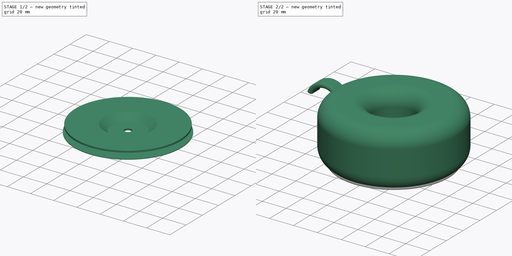
[diagram: build sequence overview — one tinted view per stage of 2, left to right]
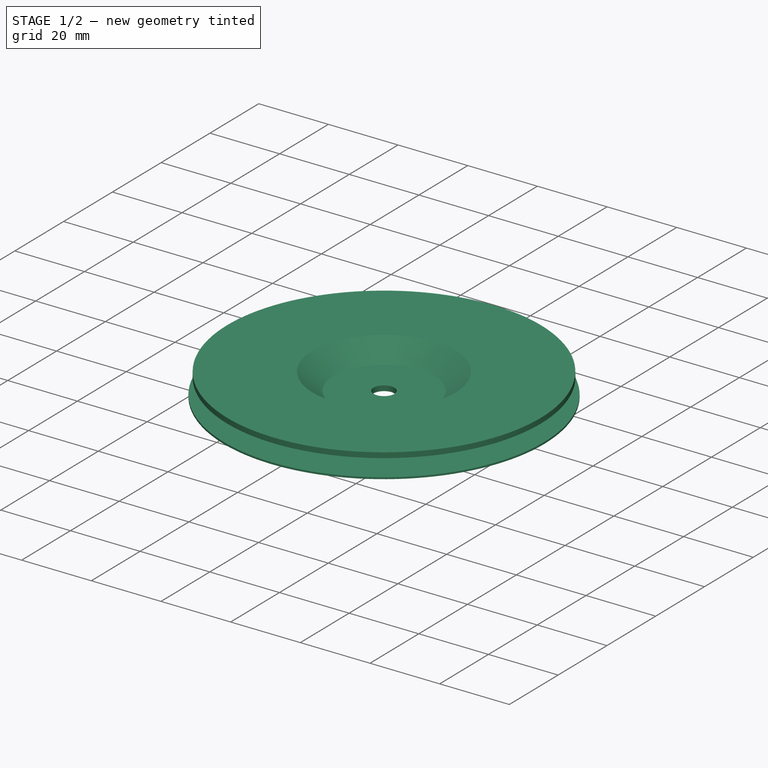
[diagram: stage 1 of 2 — iso view after this stage's code; geometry added in this stage tinted green]
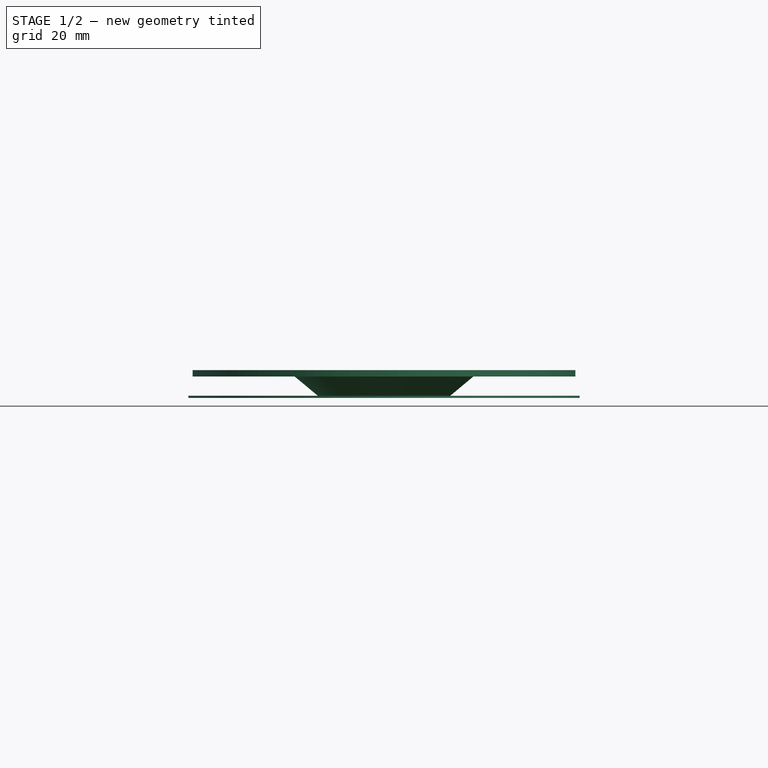
[diagram: stage 1 of 2 — front view after this stage's code; geometry added in this stage tinted green]
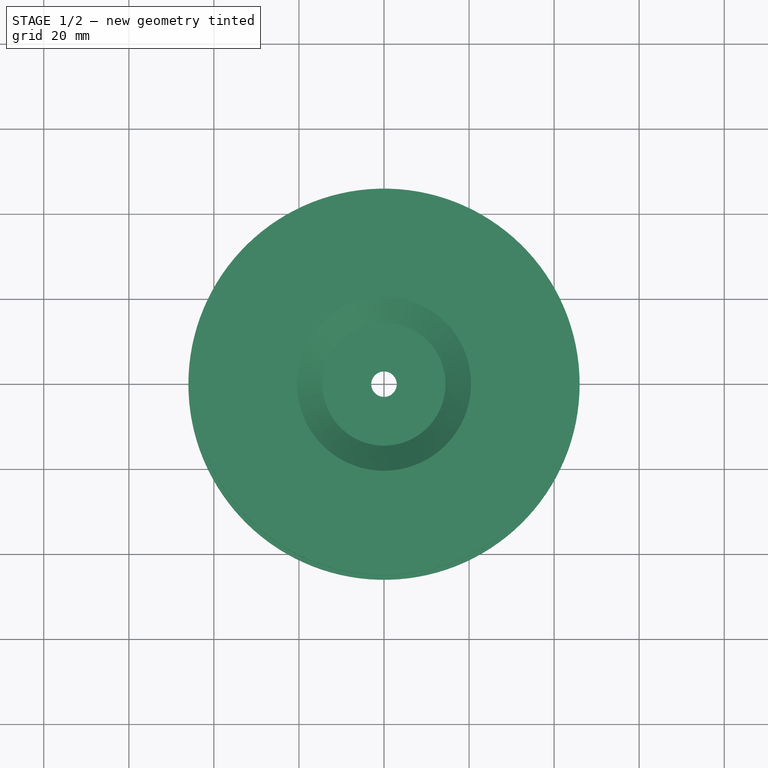
[diagram: stage 1 of 2 — top view after this stage's code; geometry added in this stage tinted green]
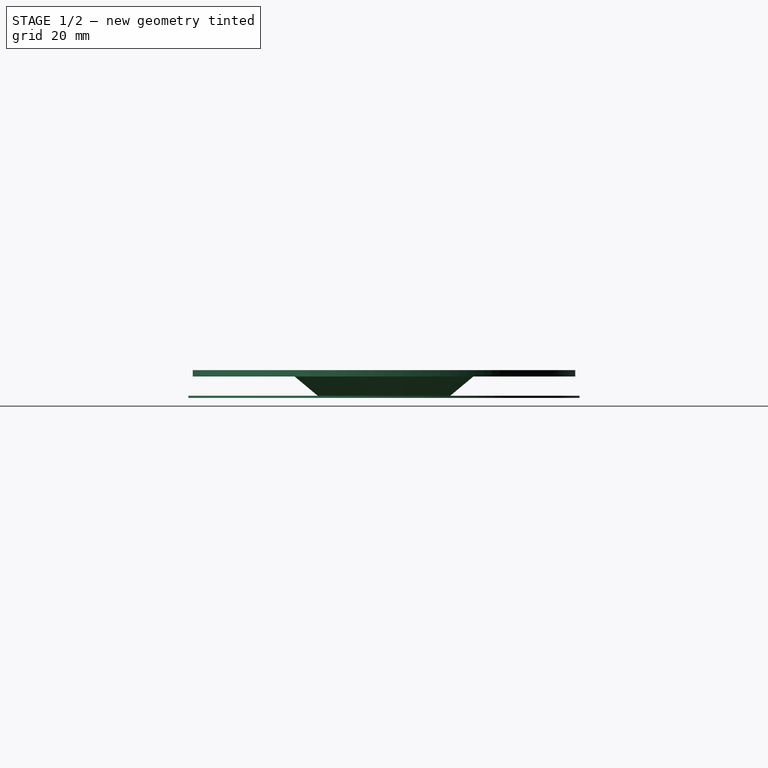
[diagram: stage 1 of 2 — right view after this stage's code; geometry added in this stage tinted green]
FCSTD DOCUMENT  (FreeCAD 0.20R28730 (Git))
Label: Transformer
License: All rights reserved
LicenseURL: http://en.wikipedia.org/wiki/All_rights_reserved
objects: PartDesign::CoordinateSystem×7, Sketcher::SketchObject×5, PartDesign::Revolution×3, PartDesign::Body×3, PartDesign::AdditivePipe×1
note: 23 computed .brp shape members not serialized (recipe doc carries the construction recipe); baked Part::Feature solids carry a one-line shape summary decoded from their .brp

FEATURE [Sketcher::SketchObject] Sketch003
  FullyConstrained = true
  MapMode = 5
  Placement = pos=(0,0,0) rot=(1,0,0;1.5708rad)
  Support = -> [XZ_Plane001]
  sketch-geometry (4):
    g0: LineSegment StartX=24 StartY=0 StartZ=0 EndX=46 EndY=0 EndZ=0
    g1: LineSegment StartX=46 StartY=0 StartZ=0 EndX=46 EndY=0.5 EndZ=0
    g2: LineSegment StartX=46 StartY=0.5 StartZ=0 EndX=24 EndY=0.5 EndZ=0
    g3: LineSegment StartX=24 StartY=0.5 StartZ=0 EndX=24 EndY=0 EndZ=0
  constraints (12):
    c: Coincident(g0,g1)
    c: Coincident(g1,g2)
    c: Coincident(g2,g3)
    c: Coincident(g3,g0)
    c: Horizontal(g0)
    c: Horizontal(g2)
    c: Vertical(g1)
    c: Vertical(g3)
    c: PointOnObject(g0,g-1)
    c: DistanceY(g3,g3) = 0.5
    c: DistanceX(g-1,g0) = 24
    c: DistanceX(g2,g2) = 22
FEATURE [PartDesign::Revolution] Revolution001
  Angle = 360
  Axis = (0,2e-16,1)
  Base = (0,0,0)
  Placement = pos=(0,0,0) rot=(1,0,0;1.5708rad)
  Profile = -> Sketch003
  ReferenceAxis = -> Sketch003 [V_Axis]
  Refine = true
  Reversed = true
FEATURE [Sketcher::SketchObject] Sketch004
  FullyConstrained = true
  MapMode = 5
  Placement = pos=(0,0,0) rot=(1,0,0;1.5708rad)
  Support = -> [XZ_Plane002]
  sketch-geometry (8):
    g0: LineSegment StartX=45 StartY=6.5 StartZ=0 EndX=20.4569 EndY=6.5 EndZ=0
    g1: LineSegment StartX=20.4569 StartY=6.5 StartZ=0 EndX=14.4569 EndY=1.5 EndZ=0
    g2: LineSegment StartX=14.4569 StartY=1.5 StartZ=0 EndX=3 EndY=1.5 EndZ=0
    g3: LineSegment StartX=3 StartY=1.5 StartZ=0 EndX=3 EndY=0 EndZ=0
    g4: LineSegment StartX=3 StartY=0 StartZ=0 EndX=15 EndY=0 EndZ=0
    g5: LineSegment StartX=15 StartY=0 StartZ=0 EndX=21 EndY=5 EndZ=0
    g6: LineSegment StartX=21 StartY=5 StartZ=0 EndX=45 EndY=5 EndZ=0
    g7: LineSegment StartX=45 StartY=5 StartZ=0 EndX=45 EndY=6.5 EndZ=0
  constraints (24):
    c: Horizontal(g0)
    c: Coincident(g0,g1)
    c: Coincident(g1,g2)
    c: Horizontal(g2)
    c: Coincident(g2,g3)
    c: Vertical(g3)
    c: Coincident(g3,g4)
    c: Horizontal(g4)
    c: Coincident(g4,g5)
    c: Coincident(g5,g6)
    c: Horizontal(g6)
    c: Coincident(g6,g7)
    c: Coincident(g7,g0)
    c: Vertical(g7)
    c: Parallel(g5,g1)
    c: Equal(g3,g7)
    c: DistanceY(g3,g3) = 1.5
    c: DistanceX(g-1,g2) = 3
    c: DistanceX(g-1,g0) = 45
    c: DistanceY(g2,g0) = 5
    c: DistanceX(g4,g4) = 12
    c: DistanceX(g6,g6) = 24
    c: Horizontal(g3,g-1)
    c: Distance(g1,g5) = 1.5
FEATURE [PartDesign::Revolution] Revolution002
  Angle = 360
  Axis = (0,2e-16,1)
  Base = (0,0,0)
  Placement = pos=(0,0,0) rot=(1,0,0;1.5708rad)
  Profile = -> Sketch004
  ReferenceAxis = -> Sketch004 [V_Axis]
  Refine = true
  Reversed = true
FEATURE [PartDesign::CoordinateSystem] LCS_Transformer_Top
  AttacherType = Attacher::AttachEngine3D
  MapMode = 11
  Placement = pos=(-3.6e-15,0,45.5) rot=(0.707107,-0.707107,0;3.14159rad)
  Support = -> [AdditivePipe]
FEATURE [PartDesign::CoordinateSystem] LCS_Transformer_Bottom
  AttacherType = Attacher::AttachEngine3D
  MapMode = 11
  Placement = pos=(-3.6e-15,0,0.5) rot=(0.707107,-0.707107,0;3.14159rad)
  Support = -> [AdditivePipe]
FEATURE [PartDesign::Body] Body  label="Transformer"
  Group = -> [Sketch,Revolution,Sketch001,Sketch002,AdditivePipe,LCS_Transformer_Top,LCS_Transformer_Bottom]
  Origin = -> Origin
  Tip = -> AdditivePipe
FEATURE [PartDesign::CoordinateSystem] LCS_Foam_Top
  AttacherType = Attacher::AttachEngine3D
  MapMode = 11
  Placement = pos=(0,2e-16,0.5) rot=(0.707107,-0.707107,0;3.14159rad)
  Support = -> [Revolution001]
FEATURE [PartDesign::CoordinateSystem] LCS_Foam_Bottom
  AttacherType = Attacher::AttachEngine3D
  MapMode = 11
  Placement = pos=(0,0,0) rot=(0.707107,-0.707107,0;3.14159rad)
  Support = -> [Revolution001]
FEATURE [PartDesign::Body] Body001  label="Foam"
  Group = -> [Sketch003,Revolution001,LCS_Foam_Top,LCS_Foam_Bottom]
  Origin = -> Origin001
  Placement = pos=(0,0,45) rot=(0,0,1;0rad)
  Tip = -> Revolution001
FEATURE [PartDesign::CoordinateSystem] LCS_Transformer_Washer_Plane
  AttacherType = Attacher::AttachEngine3D
  MapMode = 11
  Placement = pos=(0,2.2e-15,5) rot=(0.707107,-0.707107,0;3.14159rad)
  Support = -> [Revolution002]
FEATURE [PartDesign::CoordinateSystem] LCS_Transformer_Washer_Screw_Top
  AttacherType = Attacher::AttachEngine3D
  MapMode = 11
  Placement = pos=(0,7e-16,1.5) rot=(0.707107,-0.707107,0;3.14159rad)
  Support = -> [Revolution002]
FEATURE [PartDesign::CoordinateSystem] LCS_Transformer_Washer_Screw_Bottom
  AttacherType = Attacher::AttachEngine3D
  MapMode = 11
  Placement = pos=(0,0,0) rot=(0.707107,-0.707107,0;3.14159rad)
  Support = -> [Revolution002]
FEATURE [PartDesign::Body] Body002  label="Transformer_Washer"
  Group = -> [Sketch004,Revolution002,LCS_Transformer_Washer_Plane,LCS_Transformer_Washer_Screw_Top,LCS_Transformer_Washer_Screw_Bottom]
  Origin = -> Origin002
  Placement = pos=(0,0,40.5) rot=(0,0,1;0rad)
  Tip = -> Revolution002
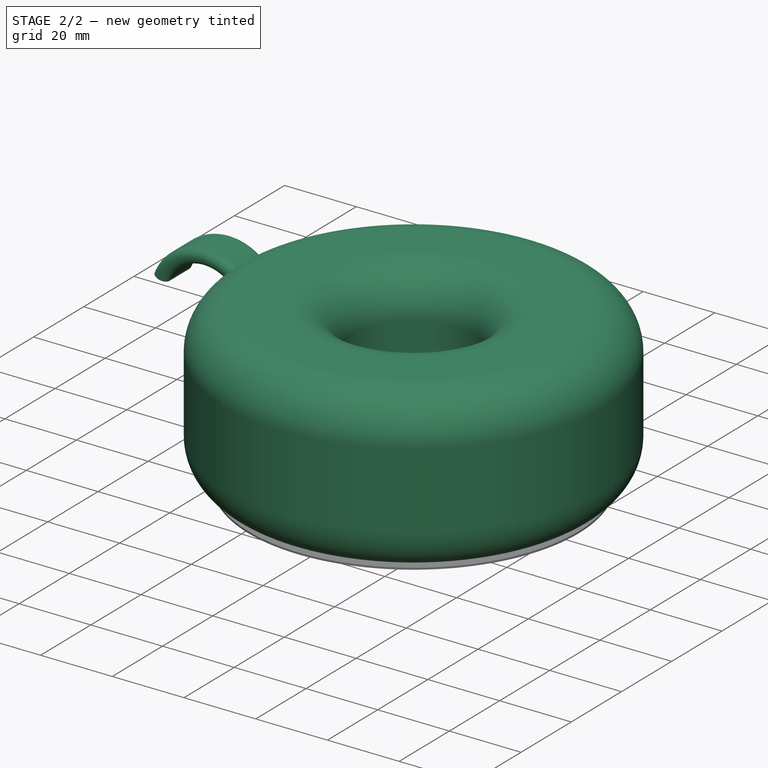
[diagram: stage 2 of 2 — iso view after this stage's code; geometry added in this stage tinted green]
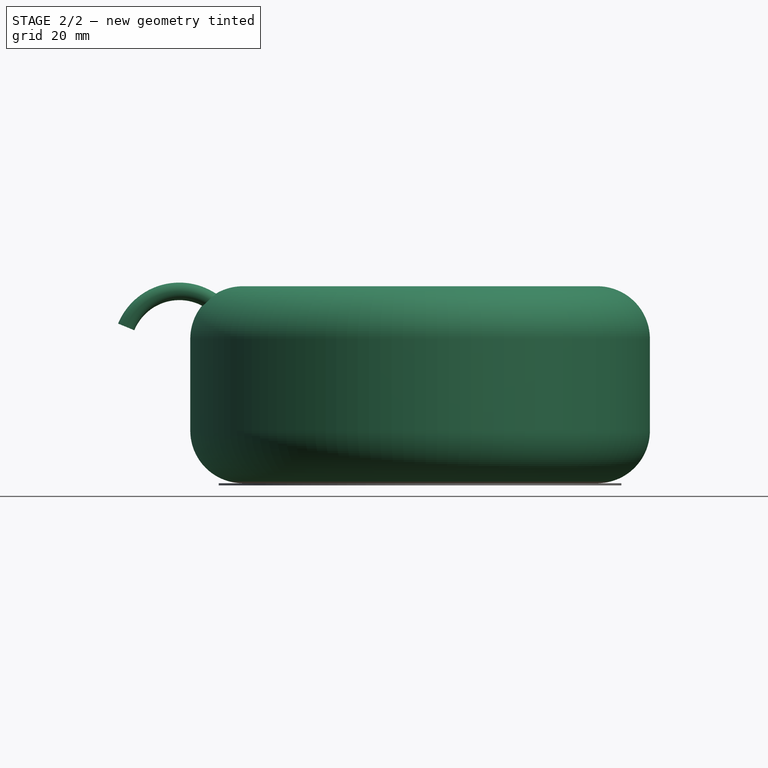
[diagram: stage 2 of 2 — front view after this stage's code; geometry added in this stage tinted green]
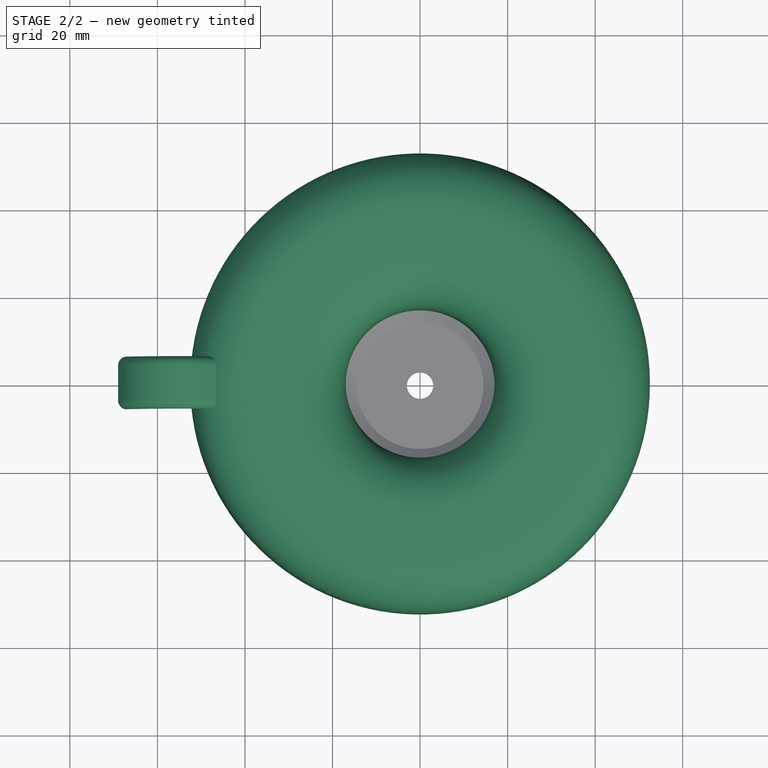
[diagram: stage 2 of 2 — top view after this stage's code; geometry added in this stage tinted green]
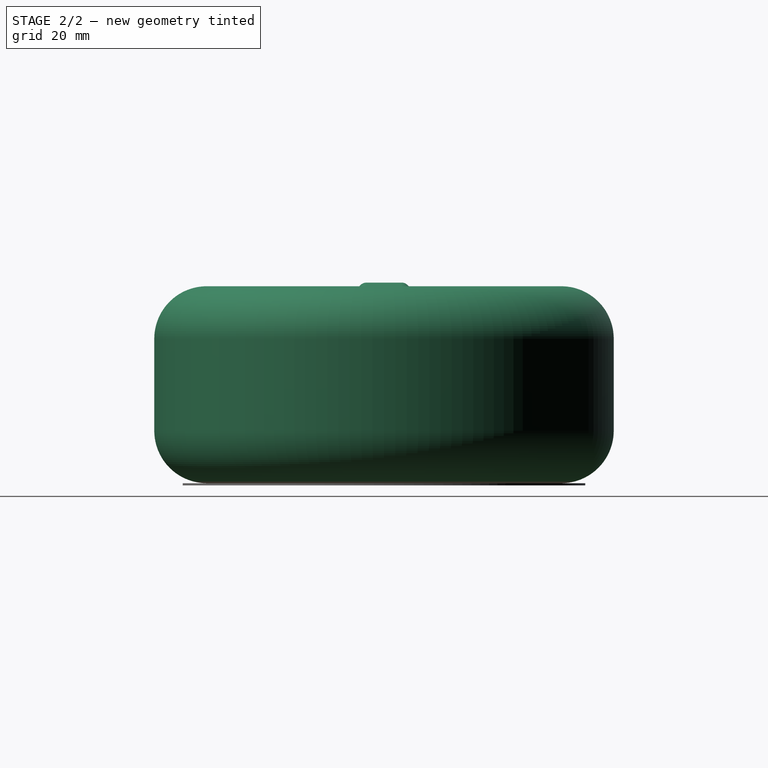
[diagram: stage 2 of 2 — right view after this stage's code; geometry added in this stage tinted green]
FEATURE [Sketcher::SketchObject] Sketch
  FullyConstrained = true
  MapMode = 5
  Placement = pos=(0,0,0) rot=(1,0,0;1.5708rad)
  Support = -> [XZ_Plane]
  sketch-geometry (10):
    g0: ArcOfCircle CenterX=29 CenterY=33.5 CenterZ=0 NormalX=0 NormalY=0 NormalZ=1 AngleXU=0 Radius=12 StartAngle=1.5708 EndAngle=3.14159
    g1: LineSegment StartX=29 StartY=45.5 StartZ=0 EndX=40.5 EndY=45.5 EndZ=0
    g2: ArcOfCircle CenterX=40.5 CenterY=33.5 CenterZ=0 NormalX=0 NormalY=0 NormalZ=1 AngleXU=0 Radius=12 StartAngle=2e-16 EndAngle=1.5708
    g3: LineSegment StartX=52.5 StartY=33.5 StartZ=0 EndX=52.5 EndY=12.5 EndZ=0
    g4: ArcOfCircle CenterX=40.5 CenterY=12.5 CenterZ=0 NormalX=0 NormalY=0 NormalZ=1 AngleXU=0 Radius=12 StartAngle=4.71239 EndAngle=6.28319
    g5: LineSegment StartX=40.5 StartY=0.5 StartZ=0 EndX=29 EndY=0.5 EndZ=0
    g6: ArcOfCircle CenterX=29 CenterY=12.5 CenterZ=0 NormalX=0 NormalY=0 NormalZ=1 AngleXU=0 Radius=12 StartAngle=3.14159 EndAngle=4.71239
    g7: LineSegment StartX=17 StartY=12.5 StartZ=0 EndX=17 EndY=33.5 EndZ=0
    g8: GeomPoint X=17 Y=45.5 Z=0
    g9: GeomPoint X=52.5 Y=0.5 Z=0
  constraints (24):
    c: Tangent(g0,g1) = 1.5708
    c: Tangent(g1,g2) = 1.5708
    c: Tangent(g2,g3) = 1.5708
    c: Tangent(g3,g4) = 1.5708
    c: Tangent(g4,g5) = 1.5708
    c: Tangent(g5,g6) = 1.5708
    c: Tangent(g6,g7) = 1.5708
    c: Tangent(g7,g0) = 1.5708
    c: Horizontal(g1)
    c: Horizontal(g5)
    c: Vertical(g3)
    c: Vertical(g7)
    c: Equal(g0,g2)
    c: Equal(g2,g4)
    c: Equal(g4,g6)
    c: PointOnObject(g8,g1)
    c: PointOnObject(g8,g7)
    c: PointOnObject(g9,g3)
    c: PointOnObject(g9,g5)
    c: Radius(g4) = 12
    c: DistanceY(g5,g0) = 45
    c: DistanceY(g-1,g5) = 0.5
    c: DistanceX(g-1,g6) = 17
    c: DistanceX(g-1,g3) = 52.5
FEATURE [PartDesign::Revolution] Revolution
  Angle = 360
  Axis = (0,-2e-16,1)
  Base = (0,0,0)
  Placement = pos=(0,0,0) rot=(1,0,0;1.5708rad)
  Profile = -> Sketch
  ReferenceAxis = -> Sketch [V_Axis]
  Refine = true
  Reversed = true
FEATURE [Sketcher::SketchObject] Sketch001
  FullyConstrained = true
  MapMode = 5
  Placement = pos=(0,0,0) rot=(1,0,0;1.5708rad)
  Support = -> [XZ_Plane]
  sketch-geometry (2):
    g0: ArcOfCircle CenterX=-40 CenterY=55 CenterZ=0 NormalX=0 NormalY=0 NormalZ=1 AngleXU=0 Radius=15 StartAngle=4.14985 EndAngle=4.71239
    g1: ArcOfCircle CenterX=-55 CenterY=31.2089 CenterZ=0 NormalX=0 NormalY=0 NormalZ=1 AngleXU=0 Radius=13.125 StartAngle=1.00826 EndAngle=2.75077
  constraints (8):
    c: DistanceX(g0,g-1) = 40
    c: DistanceY(g-1,g0) = 40
    c: Vertical(g0,g0)
    c: Tangent(g1,g0) = 1.5708
    c: Radius(g0) = 15
    c: DistanceX(g0,g0) = 8
    c: DistanceX(g1,g0) = 15
    c: DistanceY(g1,g1) = 5
FEATURE [Sketcher::SketchObject] Sketch002
  AttachmentOffset = pos=(0,0,-40) rot=(0,0,1;0rad)
  FullyConstrained = true
  MapMode = 5
  Placement = pos=(-40,8.9e-15,-8.9e-15) rot=(0.57735,0.57735,0.57735;2.0944rad)
  Support = -> [YZ_Plane]
  sketch-geometry (4):
    g0: ArcOfCircle CenterX=-4 CenterY=40 CenterZ=0 NormalX=0 NormalY=0 NormalZ=1 AngleXU=0 Radius=2 StartAngle=1.5708 EndAngle=4.71239
    g1: ArcOfCircle CenterX=4 CenterY=40 CenterZ=0 NormalX=0 NormalY=0 NormalZ=1 AngleXU=0 Radius=2 StartAngle=4.71239 EndAngle=7.85398
    g2: LineSegment StartX=-4 StartY=38 StartZ=0 EndX=4 EndY=38 EndZ=0
    g3: LineSegment StartX=4 StartY=42 StartZ=0 EndX=-4 EndY=42 EndZ=0
  constraints (9):
    c: Tangent(g0,g2) = -1.5708
    c: Tangent(g2,g1) = -1.5708
    c: Tangent(g1,g3) = -1.5708
    c: Tangent(g3,g0) = -1.5708
    c: Equal(g0,g1)
    c: Symmetric(g0,g1,g-2)
    c: DistanceX(g2,g2) = 8
    c: DistanceY(g0,g0) = 4
    c: DistanceY(g-1,g0) = 40
FEATURE [PartDesign::AdditivePipe] AdditivePipe
  AuxilleryCurvelinear = true
  AuxillerySpineTangent = false
  BaseFeature = -> Revolution
  Binormal = (0,0,0)
  Mode = 0
  Placement = pos=(0,0,0) rot=(1,0,0;1.5708rad)
  Profile = -> Sketch002
  Refine = true
  Spine = -> Sketch001
  SpineTangent = false
  Transformation = 0
  Transition = 0
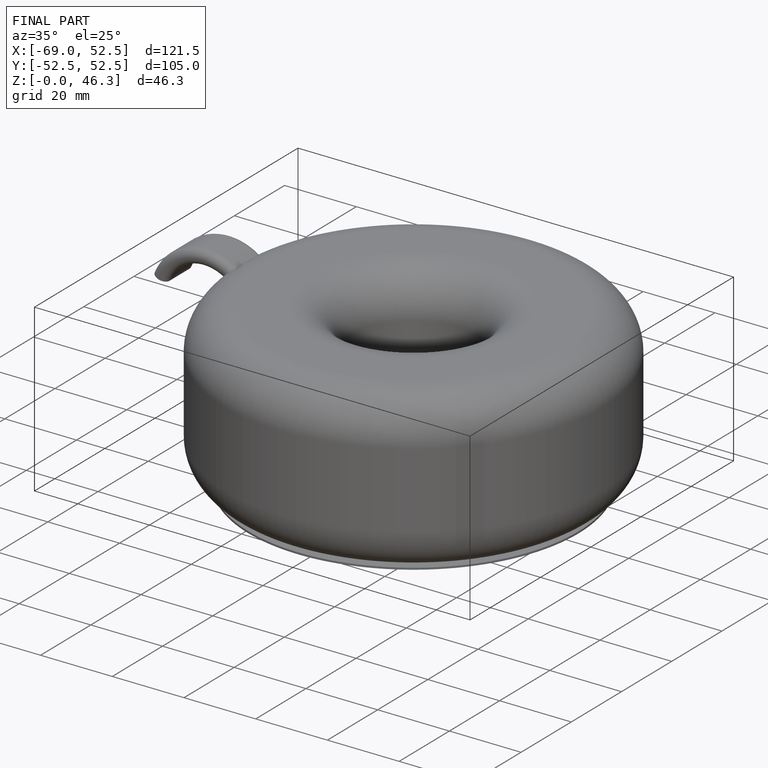
[diagram: finished part — iso view with bounding-box wireframe]
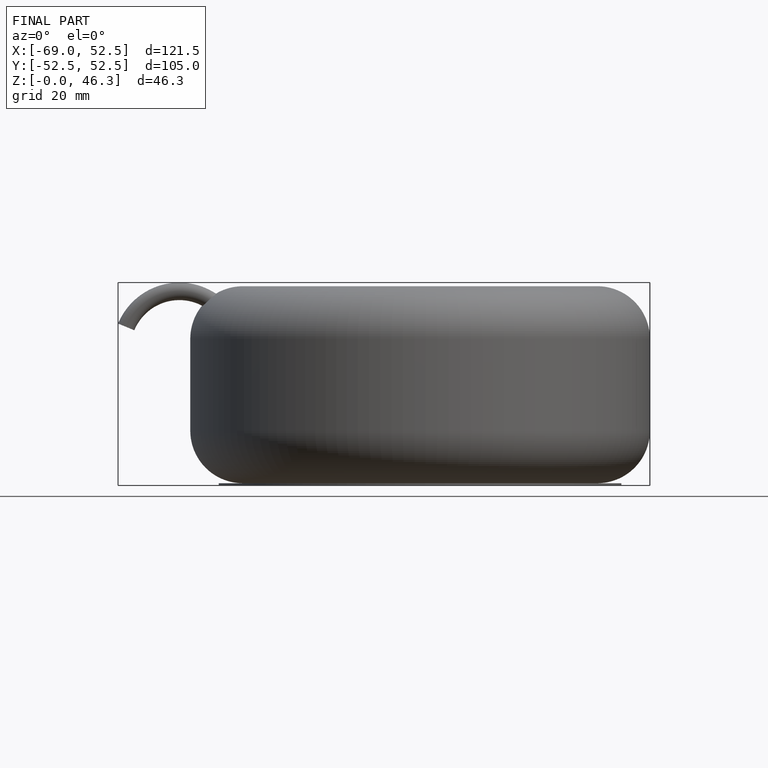
[diagram: finished part — front view with bounding-box wireframe]
